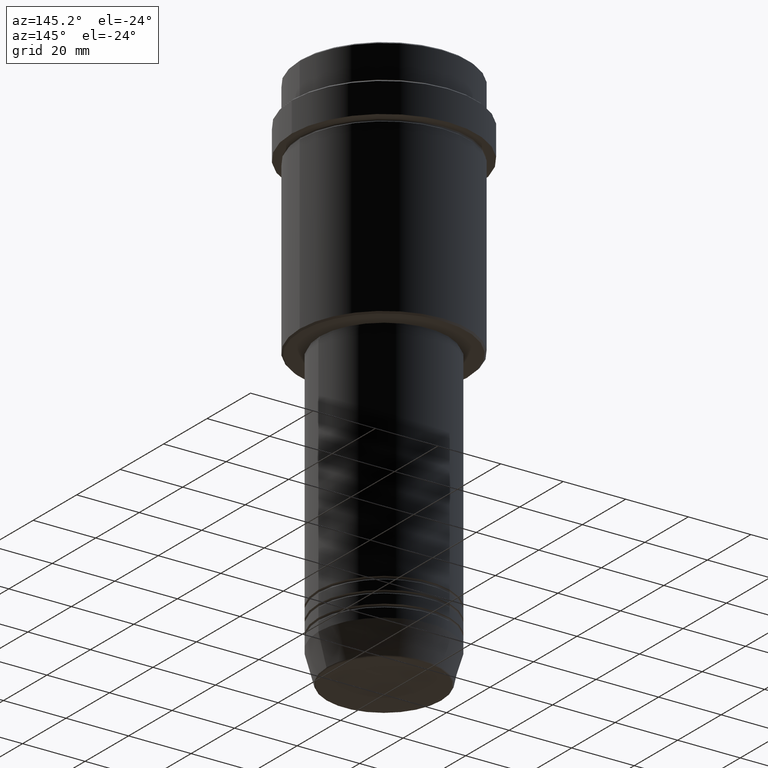
[diagram: clean part render]
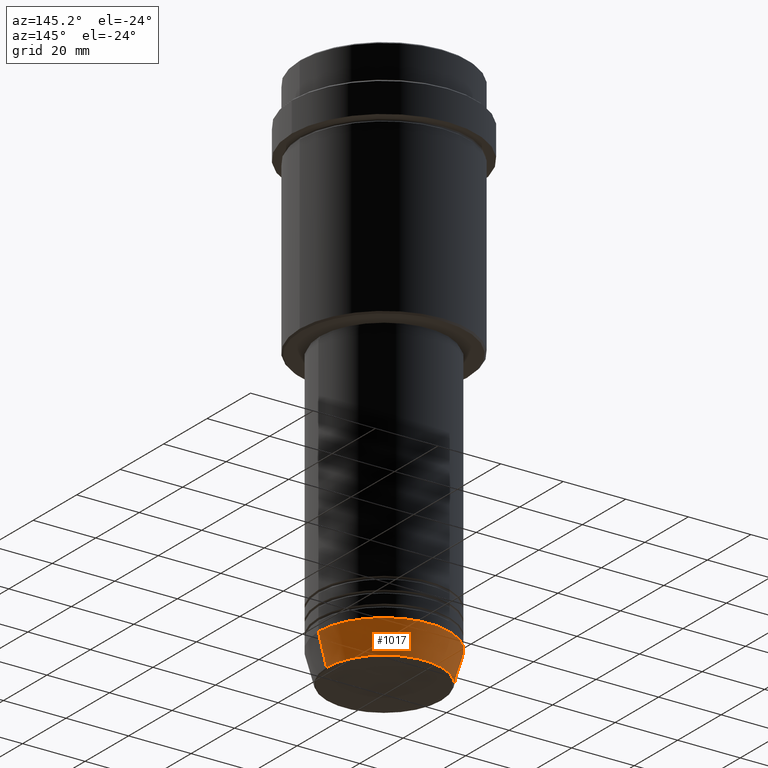
[diagram: same view with one face highlighted and labeled with its STEP entity id]
A machine part, auxiliary view. The second image highlights one B-rep face of the part: STEP entity #1017.
In plain terms, the highlighted conical surface has half-angle 15 deg.
Its self-contained STEP definition (entity closure, byte-faithful):
#74 = AXIS2_PLACEMENT_3D ( 'NONE', #1371, #147, #282 ) ;
#147 = DIRECTION ( 'NONE',  ( -0.000000000000000000, -0.000000000000000000, 1.000000000000000000 ) ) ;
#192 = ORIENTED_EDGE ( 'NONE', *, *, #770, .T. ) ;
#205 = AXIS2_PLACEMENT_3D ( 'NONE', #762, #1392, #1205 ) ;
#209 = VERTEX_POINT ( 'NONE', #570 ) ;
#282 = DIRECTION ( 'NONE',  ( 1.000000000000000000, 0.000000000000000000, 0.000000000000000000 ) ) ;
#394 = DIRECTION ( 'NONE',  ( 0.2588190451025211836, 0.000000000000000000, 0.9659258262890680902 ) ) ;
#415 = EDGE_CURVE ( 'NONE', #890, #942, #471, .T. ) ;
#429 = AXIS2_PLACEMENT_3D ( 'NONE', #633, #723, #830 ) ;
#471 = LINE ( 'NONE', #585, #705 ) ;
#492 = EDGE_CURVE ( 'NONE', #496, #209, #741, .T. ) ;
#496 = VERTEX_POINT ( 'NONE', #628 ) ;
#570 = CARTESIAN_POINT ( 'NONE',  ( 21.00000000000000000, 0.000000000000000000, -162.9999999999999716 ) ) ;
#585 = CARTESIAN_POINT ( 'NONE',  ( -21.00000000000000000, 2.571758278209441661E-15, -162.9999999999999716 ) ) ;
#628 = CARTESIAN_POINT ( 'NONE',  ( 18.41980749484383040, 0.000000000000000000, -172.6294095225512706 ) ) ;
#633 = CARTESIAN_POINT ( 'NONE',  ( 0.000000000000000000, 0.000000000000000000, -162.9999999999999716 ) ) ;
#705 = VECTOR ( 'NONE', #706, 1000.000000000000114 ) ;
#706 = DIRECTION ( 'NONE',  ( -0.2588190451025211836, 3.169619151431770488E-17, 0.9659258262890680902 ) ) ;
#723 = DIRECTION ( 'NONE',  ( -0.000000000000000000, -0.000000000000000000, 1.000000000000000000 ) ) ;
#741 = LINE ( 'NONE', #754, #987 ) ;
#754 = CARTESIAN_POINT ( 'NONE',  ( 21.00000000000000000, 0.000000000000000000, -162.9999999999999716 ) ) ;
#762 = CARTESIAN_POINT ( 'NONE',  ( 0.000000000000000000, 0.000000000000000000, -162.9999999999999716 ) ) ;
#770 = EDGE_CURVE ( 'NONE', #496, #890, #982, .T. ) ;
#822 = ORIENTED_EDGE ( 'NONE', *, *, #415, .T. ) ;
#830 = DIRECTION ( 'NONE',  ( 1.000000000000000000, 0.000000000000000000, 0.000000000000000000 ) ) ;
#853 = EDGE_LOOP ( 'NONE', ( #192, #822, #1390, #1283 ) ) ;
#890 = VERTEX_POINT ( 'NONE', #920 ) ;
#920 = CARTESIAN_POINT ( 'NONE',  ( -18.41980749484383040, 2.413767053578267064E-15, -172.6294095225512706 ) ) ;
#942 = VERTEX_POINT ( 'NONE', #1295 ) ;
#982 = CIRCLE ( 'NONE', #74, 18.41980749484383040 ) ;
#986 = CIRCLE ( 'NONE', #205, 21.00000000000000000 ) ;
#987 = VECTOR ( 'NONE', #394, 1000.000000000000114 ) ;
#1017 = ADVANCED_FACE ( 'NONE', ( #1285 ), #1311, .T. ) ;
#1205 = DIRECTION ( 'NONE',  ( 1.000000000000000000, 0.000000000000000000, 0.000000000000000000 ) ) ;
#1283 = ORIENTED_EDGE ( 'NONE', *, *, #492, .F. ) ;
#1285 = FACE_OUTER_BOUND ( 'NONE', #853, .T. ) ;
#1295 = CARTESIAN_POINT ( 'NONE',  ( -21.00000000000000000, 2.571758278209441661E-15, -162.9999999999999716 ) ) ;
#1311 = CONICAL_SURFACE ( 'NONE', #429, 21.00000000000000000, 0.2617993877991499074 ) ;
#1371 = CARTESIAN_POINT ( 'NONE',  ( 0.000000000000000000, 0.000000000000000000, -172.6294095225512706 ) ) ;
#1390 = ORIENTED_EDGE ( 'NONE', *, *, #1417, .F. ) ;
#1392 = DIRECTION ( 'NONE',  ( -0.000000000000000000, -0.000000000000000000, 1.000000000000000000 ) ) ;
#1417 = EDGE_CURVE ( 'NONE', #209, #942, #986, .T. ) ;